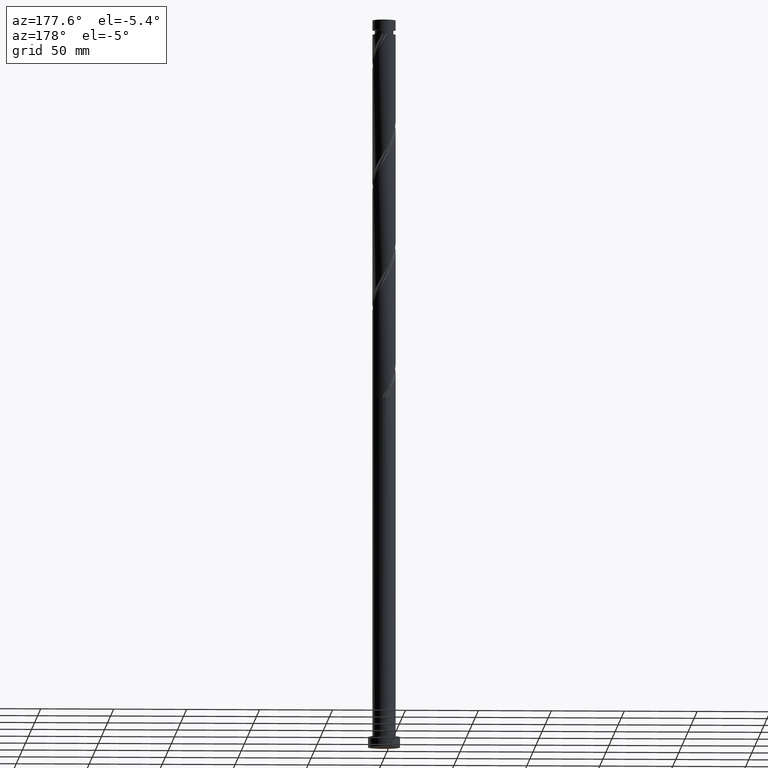
[diagram: clean part render]
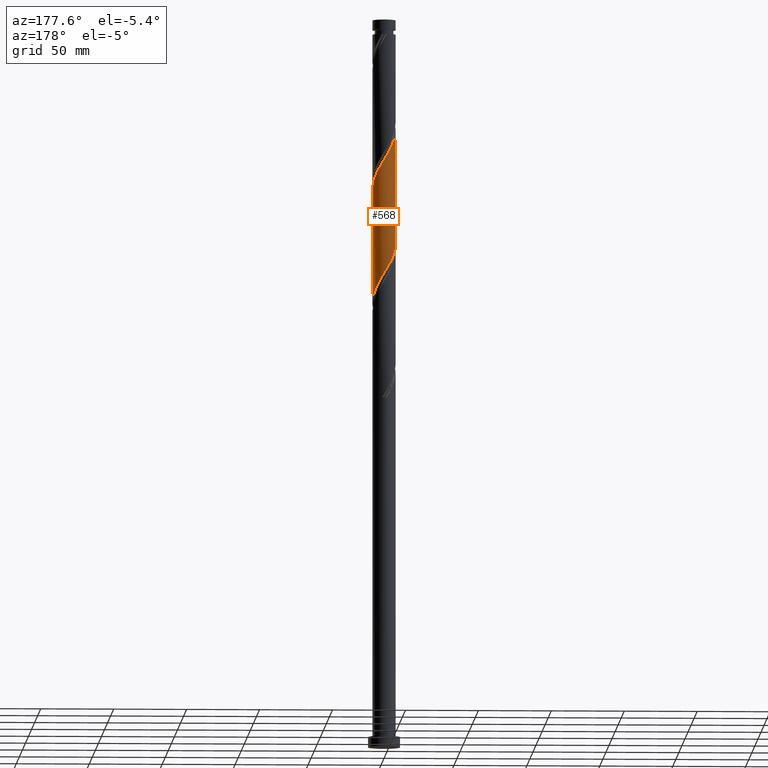
[diagram: same view with one face highlighted and labeled with its STEP entity id]
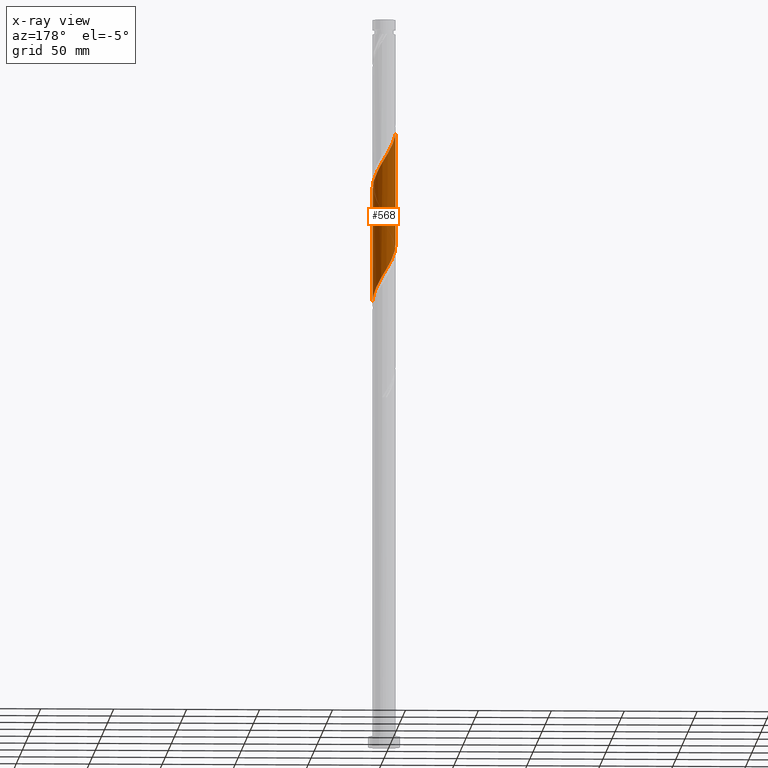
[diagram: x-ray of the same camera — body ghosted, the highlighted face saturated]
A machine part, auxiliary view. The second image highlights one B-rep face of the part: STEP entity #568.
The next image is the same camera in x-ray: the body ghosted, the highlighted face saturated — about 0% of this face is hidden behind the body in this view.
In plain terms, the highlighted cylindrical surface (edge-blend (fillet) strip) has radius 8 mm, axis along (-0, -0, -1).
Its self-contained STEP definition (entity closure, byte-faithful):
#14 = CARTESIAN_POINT ( 'NONE',  ( 5.679353536596797092, 5.634265116796108863, 315.6687052307718773 ) ) ;
#39 = EDGE_LOOP ( 'NONE', ( #1491, #306, #1698, #1686 ) ) ;
#71 = CARTESIAN_POINT ( 'NONE',  ( -6.669416946860165396, 4.418017382144912020, 417.2312052307718773 ) ) ;
#80 = CARTESIAN_POINT ( 'NONE',  ( 5.074897616815219337, 6.234280214836369183, 395.0957885641052485 ) ) ;
#88 = CARTESIAN_POINT ( 'NONE',  ( 7.840000000000008740, 1.591979899370596918, 385.9812052307719341 ) ) ;
#117 = DIRECTION ( 'NONE',  ( -0.000000000000000000, -0.000000000000000000, -1.000000000000000000 ) ) ;
#141 = CARTESIAN_POINT ( 'NONE',  ( 7.999999999999998224, 8.096477268842905008E-15, 305.3047355421020370 ) ) ;
#161 = CARTESIAN_POINT ( 'NONE',  ( -3.031987717150565587, 7.403178404107800148, 331.2937052307718204 ) ) ;
#175 = DIRECTION ( 'NONE',  ( -0.000000000000000000, -0.000000000000000000, -1.000000000000000000 ) ) ;
#237 = CARTESIAN_POINT ( 'NONE',  ( 6.193632616777007271, 5.124426858357233883, 392.4916218974383924 ) ) ;
#261 = CARTESIAN_POINT ( 'NONE',  ( -5.124426858357233883, 6.193632616777007271, 413.3249552307718204 ) ) ;
#286 = CARTESIAN_POINT ( 'NONE',  ( 6.234280214836363854, 5.074897616815213119, 314.3666218974385060 ) ) ;
#299 = CARTESIAN_POINT ( 'NONE',  ( 7.104553678883955392, 3.761137147474595821, 311.7624552307719910 ) ) ;
#306 = ORIENTED_EDGE ( 'NONE', *, *, #1592, .T. ) ;
#308 = CARTESIAN_POINT ( 'NONE',  ( -5.074897616815214008, 6.234280214836361189, 335.1999552307719341 ) ) ;
#315 = CARTESIAN_POINT ( 'NONE',  ( -8.000000000000008882, 9.171907145482446915E-15, 424.9910082527750319 ) ) ;
#403 = CARTESIAN_POINT ( 'NONE',  ( -7.852439867035863941, 1.529440464544434164, 422.4395385641051917 ) ) ;
#423 = CARTESIAN_POINT ( 'NONE',  ( 1.529440464544438827, 7.852439867035863941, 401.6062052307718204 ) ) ;
#445 = CARTESIAN_POINT ( 'NONE',  ( 2.364152501690763852, 7.683203665594592557, 322.1791218974385060 ) ) ;
#490 = CARTESIAN_POINT ( 'NONE',  ( 6.669416946860161843, 4.418017382144904026, 313.0645385641051917 ) ) ;
#567 = CARTESIAN_POINT ( 'NONE',  ( -2.364152501690765629, 7.683203665594600551, 408.1166218974385060 ) ) ;
#568 = ADVANCED_FACE ( 'NONE', ( #1934 ), #2069, .T. ) ;
#580 = CARTESIAN_POINT ( 'NONE',  ( 8.000000000000008882, 0.01594122699411172281, 383.3506951406257031 ) ) ;
#712 = CARTESIAN_POINT ( 'NONE',  ( 7.999936469572747733, 0.03188232739404819188, 383.3770385641052485 ) ) ;
#724 = CARTESIAN_POINT ( 'NONE',  ( 2.302838286826542014, 7.701803129331649345, 400.3041218974385629 ) ) ;
#730 = VECTOR ( 'NONE', #175, 1000.000000000000000 ) ;
#734 = CARTESIAN_POINT ( 'NONE',  ( -7.104553678883960721, 3.761137147474598930, 418.5332885641052485 ) ) ;
#757 = CARTESIAN_POINT ( 'NONE',  ( -0.03188232739404774779, 7.999936469572747733, 404.2103718974385060 ) ) ;
#769 = CARTESIAN_POINT ( 'NONE',  ( -7.996796334405404494, 0.8198072970504293178, 345.6166218974386197 ) ) ;
#789 = CARTESIAN_POINT ( 'NONE',  ( -7.378776727149912062, 3.090898576606943671, 341.7103718974385060 ) ) ;
#812 = VERTEX_POINT ( 'NONE', #2059 ) ;
#814 = CARTESIAN_POINT ( 'NONE',  ( -3.761137147474594933, 7.104553678883956280, 332.5957885641053053 ) ) ;
#873 = VECTOR ( 'NONE', #117, 1000.000000000000000 ) ;
#895 = CARTESIAN_POINT ( 'NONE',  ( 7.996796334405413376, 0.8198072970504307611, 384.6791218974385060 ) ) ;
#939 = CARTESIAN_POINT ( 'NONE',  ( -7.840000000000000746, 1.591979899370597584, 344.3145385641051917 ) ) ;
#952 = LINE ( 'NONE', #1608, #873 ) ;
#974 = CARTESIAN_POINT ( 'NONE',  ( -5.634265116796108863, 5.679353536596797092, 336.5020385641053053 ) ) ;
#1071 = CARTESIAN_POINT ( 'NONE',  ( 7.074349788705241338, 3.817644651523121269, 389.8874552307719341 ) ) ;
#1085 = CARTESIAN_POINT ( 'NONE',  ( -3.090898576606946779, 7.378776727149920944, 409.4187052307717067 ) ) ;
#1093 = CARTESIAN_POINT ( 'NONE',  ( 7.378776727149920944, 3.090898576606946779, 388.5853718974385629 ) ) ;
#1103 = CARTESIAN_POINT ( 'NONE',  ( -7.999936469572738851, 0.03188232739405277155, 346.9187052307719341 ) ) ;
#1109 = CARTESIAN_POINT ( 'NONE',  ( 0.000000000000000000, 0.000000000000000000, 500.0000000000000000 ) ) ;
#1116 = CARTESIAN_POINT ( 'NONE',  ( 8.000000000000005329, 0.7718385194318326814, 306.5807156475182182 ) ) ;
#1131 = CARTESIAN_POINT ( 'NONE',  ( -8.000000000000000000, 0.000000000000000000, 500.0000000000000000 ) ) ;
#1138 = CARTESIAN_POINT ( 'NONE',  ( 7.403178404107800148, 3.031987717150562478, 310.4603718974384492 ) ) ;
#1146 = VERTEX_POINT ( 'NONE', #1792 ) ;
#1152 = LINE ( 'NONE', #1131, #730 ) ;
#1153 = EDGE_CURVE ( 'NONE', #2102, #1146, #1152, .T. ) ;
#1231 = CARTESIAN_POINT ( 'NONE',  ( -3.817644651523123933, 7.074349788705239561, 410.7207885641052485 ) ) ;
#1259 = CARTESIAN_POINT ( 'NONE',  ( 4.418017382144912020, 6.669416946860164508, 396.3978718974386766 ) ) ;
#1266 = DIRECTION ( 'NONE',  ( -0.000000000000000000, -0.000000000000000000, -1.000000000000000000 ) ) ;
#1270 = CARTESIAN_POINT ( 'NONE',  ( -7.999999999999998224, 0.01594122699408285354, 346.9450486542515364 ) ) ;
#1282 = CARTESIAN_POINT ( 'NONE',  ( -7.999999999999998224, 1.498332890520905036E-14, 346.9714022087687795 ) ) ;
#1308 = CARTESIAN_POINT ( 'NONE',  ( 3.090898576606946779, 7.378776727149911174, 320.8770385641051917 ) ) ;
#1320 =( BOUNDED_CURVE ( )  B_SPLINE_CURVE ( 2, ( #1282, #1270, #1103, #769, #939, #1964, #789, #2094, #1952, #1585, #974, #308, #1940, #814, #161, #1791, #1431, #2074, #1917, #1598, #1474, #445, #1308, #1758, #1805, #1778, #14, #286, #490, #299, #1138, #1619, #1927, #1116, #141 ),
 .UNSPECIFIED., .F., .T. ) 
 B_SPLINE_CURVE_WITH_KNOTS ( ( 3, 2, 2, 2, 2, 2, 2, 2, 2, 2, 2, 2, 2, 2, 2, 2, 2, 3 ),
 ( 0.6795286902180871502, 0.6796875000000000000, 0.6875000000000000000, 0.6953125000000000000, 0.7031250000000000000, 0.7109375000000000000, 0.7187500000000000000, 0.7265625000000000000, 0.7343750000000000000, 0.7421875000000000000, 0.7500000000000000000, 0.7578125000000000000, 0.7656250000000000000, 0.7734375000000000000, 0.7812500000000000000, 0.7890625000000000000, 0.7968750000000000000, 0.8045286902180873723 ),
 .UNSPECIFIED. ) 
 CURVE ( )  GEOMETRIC_REPRESENTATION_ITEM ( )  RATIONAL_B_SPLINE_CURVE ( ( 0.9089165573359369033, 0.9090019243628416623, 0.9090909090909334855, 0.9047133878838395926, 0.9090909090909334855, 0.9047133878838395926, 0.9090909090909334855, 0.9047133878838395926, 0.9090909090909334855, 0.9047133878838395926, 0.9090909090909334855, 0.9047133878838395926, 0.9090909090909334855, 0.9047133878838395926, 0.9090909090909334855, 0.9047133878838395926, 0.9090909090909334855, 0.9047133878838395926, 0.9090909090909334855, 0.9047133878838395926, 0.9090909090909334855, 0.9047133878838395926, 0.9090909090909334855, 0.9047133878838395926, 0.9090909090909334855, 0.9047133878838395926, 0.9090909090909334855, 0.9047133878838395926, 0.9090909090909334855, 0.9047133878838395926, 0.9090909090909334855, 0.9047133878838395926, 0.9090909090909334855, 0.9048023726119313048, 0.9089165573359370143 ) ) 
 REPRESENTATION_ITEM ( '' )  );
#1390 = CARTESIAN_POINT ( 'NONE',  ( -0.8198072970504302059, 7.996796334405413376, 405.5124552307718204 ) ) ;
#1400 = CARTESIAN_POINT ( 'NONE',  ( -8.000000000000008882, 0.7718385194318584386, 423.7150281473591349 ) ) ;
#1401 = EDGE_CURVE ( 'NONE', #1950, #2102, #2043, .T. ) ;
#1420 = CARTESIAN_POINT ( 'NONE',  ( -5.679353536596801533, 5.634265116796115080, 414.6270385641051917 ) ) ;
#1431 = CARTESIAN_POINT ( 'NONE',  ( -1.529440464544431055, 7.852439867035857723, 328.6895385641050780 ) ) ;
#1474 = CARTESIAN_POINT ( 'NONE',  ( 1.591979899370598917, 7.840000000000000746, 323.4812052307718773 ) ) ;
#1491 = ORIENTED_EDGE ( 'NONE', *, *, #1401, .F. ) ;
#1537 = CARTESIAN_POINT ( 'NONE',  ( -4.471035754940179352, 6.633991202741124305, 412.0228718974386197 ) ) ;
#1540 = EDGE_CURVE ( 'NONE', #1146, #812, #1320, .T. ) ;
#1545 = CARTESIAN_POINT ( 'NONE',  ( 3.761137147474603371, 7.104553678883959833, 397.6999552307719910 ) ) ;
#1556 = CARTESIAN_POINT ( 'NONE',  ( 8.000000000000007105, 1.041508171691849484E-14, 383.3243415861085168 ) ) ;
#1574 = CARTESIAN_POINT ( 'NONE',  ( -1.591979899370596030, 7.840000000000008740, 406.8145385641052485 ) ) ;
#1585 = CARTESIAN_POINT ( 'NONE',  ( -6.193632616776999278, 5.124426858357231218, 337.8041218974386197 ) ) ;
#1592 = EDGE_CURVE ( 'NONE', #1950, #812, #952, .T. ) ;
#1598 = CARTESIAN_POINT ( 'NONE',  ( 0.8198072970504296508, 7.996796334405404494, 324.7832885641052485 ) ) ;
#1608 = CARTESIAN_POINT ( 'NONE',  ( 8.000000000000000000, 9.797174393178825657E-16, 500.0000000000000000 ) ) ;
#1619 = CARTESIAN_POINT ( 'NONE',  ( 7.701803129331644904, 2.302838286826536240, 309.1582885641052485 ) ) ;
#1686 = ORIENTED_EDGE ( 'NONE', *, *, #1153, .F. ) ;
#1688 = AXIS2_PLACEMENT_3D ( 'NONE', #1109, #1266, #1774 ) ;
#1698 = ORIENTED_EDGE ( 'NONE', *, *, #1540, .F. ) ;
#1723 = CARTESIAN_POINT ( 'NONE',  ( 6.633991202741123416, 4.471035754940180240, 391.1895385641051917 ) ) ;
#1737 = CARTESIAN_POINT ( 'NONE',  ( -7.403178404107808142, 3.031987717150570916, 419.8353718974386197 ) ) ;
#1749 = CARTESIAN_POINT ( 'NONE',  ( 3.031987717150569583, 7.403178404107808142, 399.0020385641052485 ) ) ;
#1758 = CARTESIAN_POINT ( 'NONE',  ( 3.817644651523122157, 7.074349788705234232, 319.5749552307718773 ) ) ;
#1774 = DIRECTION ( 'NONE',  ( -1.000000000000000000, 0.000000000000000000, 0.000000000000000000 ) ) ;
#1778 = CARTESIAN_POINT ( 'NONE',  ( 5.124426858357231218, 6.193632616776997502, 316.9707885641051917 ) ) ;
#1791 = CARTESIAN_POINT ( 'NONE',  ( -2.302838286826536240, 7.701803129331644904, 329.9916218974385060 ) ) ;
#1792 = CARTESIAN_POINT ( 'NONE',  ( -7.999999999999998224, 1.498332890520905036E-14, 346.9714022087687795 ) ) ;
#1805 = CARTESIAN_POINT ( 'NONE',  ( 4.471035754940180240, 6.633991202741113646, 318.2728718974385060 ) ) ;
#1877 = CARTESIAN_POINT ( 'NONE',  ( -6.234280214836369183, 5.074897616815220225, 415.9291218974385060 ) ) ;
#1897 = CARTESIAN_POINT ( 'NONE',  ( 0.7560426422623273135, 8.003076604740078537, 402.9082885641052485 ) ) ;
#1914 = CARTESIAN_POINT ( 'NONE',  ( 8.000000000000007105, 1.041508171691849484E-14, 383.3243415861084600 ) ) ;
#1917 = CARTESIAN_POINT ( 'NONE',  ( 0.03188232739405234828, 7.999936469572738851, 326.0853718974385060 ) ) ;
#1927 = CARTESIAN_POINT ( 'NONE',  ( 7.852439867035857723, 1.529440464544433276, 307.8562052307718773 ) ) ;
#1934 = FACE_OUTER_BOUND ( 'NONE', #39, .T. ) ;
#1940 = CARTESIAN_POINT ( 'NONE',  ( -4.418017382144907579, 6.669416946860160067, 333.8978718974385060 ) ) ;
#1950 = VERTEX_POINT ( 'NONE', #1914 ) ;
#1952 = CARTESIAN_POINT ( 'NONE',  ( -6.633991202741118087, 4.471035754940177576, 339.1062052307719341 ) ) ;
#1964 = CARTESIAN_POINT ( 'NONE',  ( -7.683203665594589005, 2.364152501690765629, 343.0124552307719341 ) ) ;
#2035 = CARTESIAN_POINT ( 'NONE',  ( 7.683203665594600551, 2.364152501690762076, 387.2832885641051917 ) ) ;
#2042 = CARTESIAN_POINT ( 'NONE',  ( -8.000000000000008882, 9.171907145482446915E-15, 424.9910082527749751 ) ) ;
#2043 =( BOUNDED_CURVE ( )  B_SPLINE_CURVE ( 2, ( #1556, #580, #712, #895, #88, #2035, #1093, #1071, #1723, #237, #2051, #80, #1259, #1545, #1749, #724, #423, #1897, #757, #1390, #1574, #567, #1085, #1231, #1537, #261, #1420, #1877, #71, #734, #1737, #2062, #403, #1400, #2042 ),
 .UNSPECIFIED., .F., .T. ) 
 B_SPLINE_CURVE_WITH_KNOTS ( ( 3, 2, 2, 2, 2, 2, 2, 2, 2, 2, 2, 2, 2, 2, 2, 2, 2, 3 ),
 ( 0.4295286902180874833, 0.4296875000000000000, 0.4375000000000000000, 0.4453125000000000000, 0.4531250000000000000, 0.4609375000000000000, 0.4687500000000000000, 0.4765625000000000000, 0.4843750000000000000, 0.4921875000000000000, 0.5000000000000000000, 0.5078125000000000000, 0.5156250000000000000, 0.5234375000000000000, 0.5312500000000000000, 0.5390625000000000000, 0.5468750000000000000, 0.5545286902180871502 ),
 .UNSPECIFIED. ) 
 CURVE ( )  GEOMETRIC_REPRESENTATION_ITEM ( )  RATIONAL_B_SPLINE_CURVE ( ( 0.9089165573359412331, 0.9090019243628458812, 0.9090909090909375934, 0.9047133878838438115, 0.9090909090909375934, 0.9047133878838438115, 0.9090909090909375934, 0.9047133878838438115, 0.9090909090909375934, 0.9047133878838438115, 0.9090909090909375934, 0.9047133878838438115, 0.9090909090909375934, 0.9047133878838438115, 0.9090909090909375934, 0.9047133878838438115, 0.9090909090909375934, 0.9047133878838438115, 0.9090909090909375934, 0.9047133878838438115, 0.9090909090909375934, 0.9047133878838438115, 0.9090909090909375934, 0.9047133878838438115, 0.9090909090909375934, 0.9047133878838438115, 0.9090909090909375934, 0.9047133878838438115, 0.9090909090909375934, 0.9047133878838438115, 0.9090909090909375934, 0.9047133878838438115, 0.9090909090909375934, 0.9048023726119356347, 0.9089165573359410111 ) ) 
 REPRESENTATION_ITEM ( '' )  );
#2051 = CARTESIAN_POINT ( 'NONE',  ( 5.634265116796116857, 5.679353536596799756, 393.7937052307718773 ) ) ;
#2059 = CARTESIAN_POINT ( 'NONE',  ( 7.999999999999998224, 8.096477268842905008E-15, 305.3047355421020939 ) ) ;
#2062 = CARTESIAN_POINT ( 'NONE',  ( -7.701803129331651121, 2.302838286826541125, 421.1374552307718773 ) ) ;
#2069 = CYLINDRICAL_SURFACE ( 'NONE', #1688, 8.000000000000000000 ) ;
#2074 = CARTESIAN_POINT ( 'NONE',  ( -0.7560426422623246490, 8.003076604740073208, 327.3874552307719341 ) ) ;
#2094 = CARTESIAN_POINT ( 'NONE',  ( -7.074349788705235120, 3.817644651523121269, 340.4082885641053053 ) ) ;
#2102 = VERTEX_POINT ( 'NONE', #315 ) ;